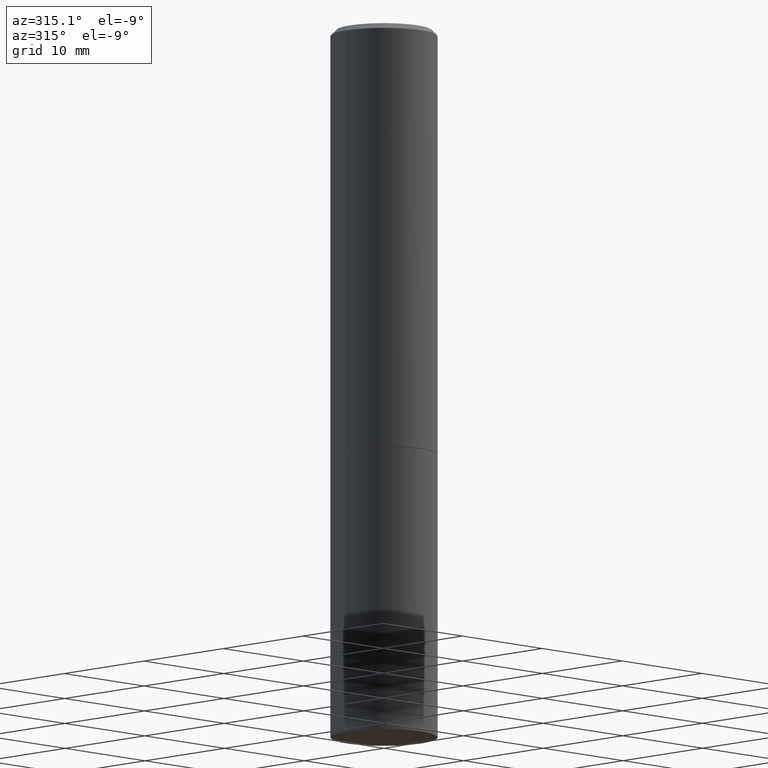
[diagram: clean part render]
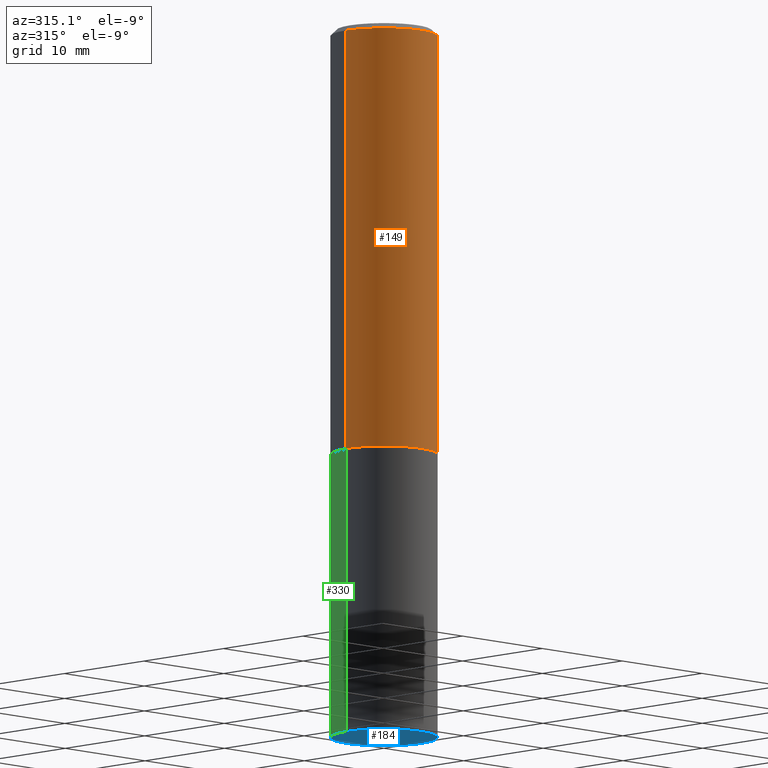
[diagram: same view with three faces highlighted in distinct colors, each labeled with its STEP entity id]
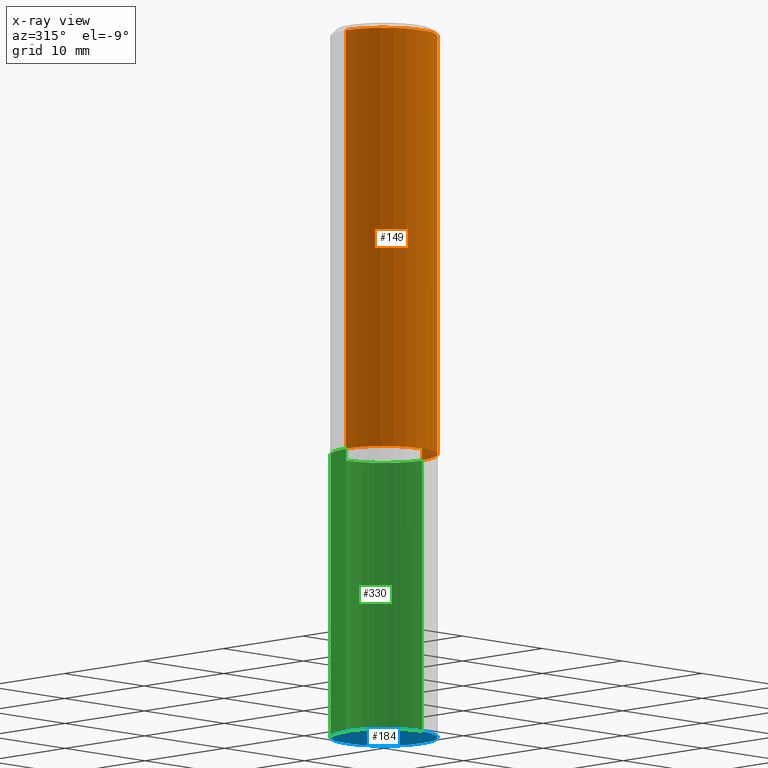
[diagram: x-ray of the same camera — body ghosted, the three highlighted faces saturated]
A machine part, auxiliary view with three faces highlighted in distinct colors.
The next image is the same camera in x-ray (body ghosted, the three faces saturated) — at least one of them is partly hidden behind the body in this view.
Their STEP definitions:

[orange] entity #149 — the highlighted cylindrical surface (partial cylindrical patch) has radius 4.7625 mm, axis along (-0, 0, 1).
#5 = AXIS2_PLACEMENT_3D ( 'NONE', #186, #328, #105 ) ;
#8 = DIRECTION ( 'NONE',  ( 1.000000000000000000, -6.982962677686265922E-15, 4.876176775795935793E-29 ) ) ;
#37 = EDGE_CURVE ( 'NONE', #284, #317, #40, .T. ) ;
#40 = LINE ( 'NONE', #243, #255 ) ;
#49 = EDGE_CURVE ( 'NONE', #284, #160, #67, .T. ) ;
#56 = ORIENTED_EDGE ( 'NONE', *, *, #126, .T. ) ;
#59 = CARTESIAN_POINT ( 'NONE',  ( 4.890937612370283668E-31, -6.982962677686305168E-17, -0.02000000000000004205 ) ) ;
#67 = CIRCLE ( 'NONE', #5, 0.1875000000000000278 ) ;
#77 = DIRECTION ( 'NONE',  ( -2.445468806185136597E-29, 3.491481338843145583E-15, 1.000000000000000000 ) ) ;
#90 = DIRECTION ( 'NONE',  ( 1.000000000000000000, -6.982962677686266711E-15, 0.000000000000000000 ) ) ;
#101 = LINE ( 'NONE', #267, #152 ) ;
#105 = DIRECTION ( 'NONE',  ( 1.000000000000000000, -6.982962677686266711E-15, 0.000000000000000000 ) ) ;
#107 = CIRCLE ( 'NONE', #265, 0.1874999999999998057 ) ;
#121 = ORIENTED_EDGE ( 'NONE', *, *, #260, .F. ) ;
#126 = EDGE_CURVE ( 'NONE', #160, #357, #101, .T. ) ;
#149 = ADVANCED_FACE ( 'NONE', ( #241 ), #244, .T. ) ;
#151 = DIRECTION ( 'NONE',  ( -2.445468806185136597E-29, 3.491481338843145583E-15, 1.000000000000000000 ) ) ;
#152 = VECTOR ( 'NONE', #164, 39.37007874015748143 ) ;
#160 = VERTEX_POINT ( 'NONE', #342 ) ;
#164 = DIRECTION ( 'NONE',  ( -2.445468806185136877E-29, 3.491481338843145188E-15, 1.000000000000000000 ) ) ;
#186 = CARTESIAN_POINT ( 'NONE',  ( 3.665757740471519853E-29, -5.233730526925875958E-15, -1.499000000000000110 ) ) ;
#224 = CARTESIAN_POINT ( 'NONE',  ( 0.000000000000000000, 0.000000000000000000, 0.000000000000000000 ) ) ;
#241 = FACE_OUTER_BOUND ( 'NONE', #296, .T. ) ;
#243 = CARTESIAN_POINT ( 'NONE',  ( -0.1874999999999999167, 1.332267629550187257E-15, -9.223003294227943787E-30 ) ) ;
#244 = CYLINDRICAL_SURFACE ( 'NONE', #312, 0.1874999999999999167 ) ;
#245 = DIRECTION ( 'NONE',  ( -2.445468806185136877E-29, 3.491481338843145188E-15, 1.000000000000000000 ) ) ;
#255 = VECTOR ( 'NONE', #245, 39.37007874015748143 ) ;
#259 = ORIENTED_EDGE ( 'NONE', *, *, #49, .T. ) ;
#260 = EDGE_CURVE ( 'NONE', #317, #357, #107, .T. ) ;
#264 = CARTESIAN_POINT ( 'NONE',  ( -0.1874999999999999722, -1.319512447301180399E-15, -1.499000000000000110 ) ) ;
#265 = AXIS2_PLACEMENT_3D ( 'NONE', #59, #151, #90 ) ;
#267 = CARTESIAN_POINT ( 'NONE',  ( 0.1874999999999999167, -1.309305502066174219E-15, 9.142831454617375408E-30 ) ) ;
#280 = ORIENTED_EDGE ( 'NONE', *, *, #37, .F. ) ;
#284 = VERTEX_POINT ( 'NONE', #264 ) ;
#296 = EDGE_LOOP ( 'NONE', ( #280, #259, #56, #121 ) ) ;
#305 = CARTESIAN_POINT ( 'NONE',  ( 0.1874999999999998057, -1.356173001359023888E-15, -0.02000000000000004205 ) ) ;
#312 = AXIS2_PLACEMENT_3D ( 'NONE', #224, #77, #8 ) ;
#317 = VERTEX_POINT ( 'NONE', #356 ) ;
#328 = DIRECTION ( 'NONE',  ( -2.445468806185136597E-29, 3.491481338843145583E-15, 1.000000000000000000 ) ) ;
#342 = CARTESIAN_POINT ( 'NONE',  ( 0.1875000000000000278, -6.543036028992050967E-15, -1.499000000000000110 ) ) ;
#356 = CARTESIAN_POINT ( 'NONE',  ( -0.1874999999999998057, 1.239475875289310527E-15, -0.02000000000000004205 ) ) ;
#357 = VERTEX_POINT ( 'NONE', #305 ) ;

[blue] entity #184 — the highlighted planar face has unit normal (0, -0, -1).
#2 = VERTEX_POINT ( 'NONE', #236 ) ;
#13 = DIRECTION ( 'NONE',  ( 1.000000000000000000, -6.982962677686266711E-15, 0.000000000000000000 ) ) ;
#16 = CARTESIAN_POINT ( 'NONE',  ( 1.309305502066236145E-15, 0.1874999999999912847, -2.500000000000000444 ) ) ;
#45 = AXIS2_PLACEMENT_3D ( 'NONE', #76, #161, #297 ) ;
#58 = CARTESIAN_POINT ( 'NONE',  ( 0.1875000000000000278, -1.003800884917403995E-14, -2.500000000000000000 ) ) ;
#69 = PLANE ( 'NONE',  #156 ) ;
#76 = CARTESIAN_POINT ( 'NONE',  ( 6.113672015462842613E-29, -8.728703347107864943E-15, -2.500000000000000000 ) ) ;
#85 = DIRECTION ( 'NONE',  ( -1.000000000000000000, 6.982962677686265922E-15, -4.876176775795935793E-29 ) ) ;
#89 = CIRCLE ( 'NONE', #45, 0.1875000000000000278 ) ;
#123 = EDGE_CURVE ( 'NONE', #2, #363, #234, .T. ) ;
#156 = AXIS2_PLACEMENT_3D ( 'NONE', #16, #226, #85 ) ;
#161 = DIRECTION ( 'NONE',  ( -2.445468806185136597E-29, 3.491481338843145583E-15, 1.000000000000000000 ) ) ;
#162 = FACE_OUTER_BOUND ( 'NONE', #300, .T. ) ;
#184 = ADVANCED_FACE ( 'NONE', ( #162 ), #69, .T. ) ;
#194 = CARTESIAN_POINT ( 'NONE',  ( 6.113672015462842613E-29, -8.728703347107864943E-15, -2.500000000000000000 ) ) ;
#222 = ORIENTED_EDGE ( 'NONE', *, *, #123, .F. ) ;
#226 = DIRECTION ( 'NONE',  ( 2.438088387897960049E-29, -3.491481338843145188E-15, -1.000000000000000000 ) ) ;
#234 = CIRCLE ( 'NONE', #307, 0.1875000000000000278 ) ;
#236 = CARTESIAN_POINT ( 'NONE',  ( -0.1875000000000000278, -5.650695048136103317E-15, -2.500000000000000000 ) ) ;
#250 = EDGE_CURVE ( 'NONE', #363, #2, #89, .T. ) ;
#268 = DIRECTION ( 'NONE',  ( -2.445468806185136597E-29, 3.491481338843145583E-15, 1.000000000000000000 ) ) ;
#297 = DIRECTION ( 'NONE',  ( 1.000000000000000000, -6.982962677686266711E-15, 0.000000000000000000 ) ) ;
#300 = EDGE_LOOP ( 'NONE', ( #346, #222 ) ) ;
#307 = AXIS2_PLACEMENT_3D ( 'NONE', #194, #268, #13 ) ;
#346 = ORIENTED_EDGE ( 'NONE', *, *, #250, .F. ) ;
#363 = VERTEX_POINT ( 'NONE', #58 ) ;

[green] entity #330 — the highlighted cylindrical surface (partial cylindrical patch) has radius 4.7625 mm, axis along (-0, 0, 1).
#2 = VERTEX_POINT ( 'NONE', #236 ) ;
#27 = CARTESIAN_POINT ( 'NONE',  ( 0.1875000000000000278, -6.546527510330893974E-15, -1.500000000000000222 ) ) ;
#44 = CARTESIAN_POINT ( 'NONE',  ( 0.1875000000000000278, -1.309305502066175008E-15, 9.142831454617381013E-30 ) ) ;
#45 = AXIS2_PLACEMENT_3D ( 'NONE', #76, #161, #297 ) ;
#58 = CARTESIAN_POINT ( 'NONE',  ( 0.1875000000000000278, -1.003800884917403995E-14, -2.500000000000000000 ) ) ;
#60 = ORIENTED_EDGE ( 'NONE', *, *, #87, .F. ) ;
#64 = LINE ( 'NONE', #213, #291 ) ;
#72 = EDGE_CURVE ( 'NONE', #354, #81, #104, .T. ) ;
#74 = AXIS2_PLACEMENT_3D ( 'NONE', #240, #289, #266 ) ;
#76 = CARTESIAN_POINT ( 'NONE',  ( 6.113672015462842613E-29, -8.728703347107864943E-15, -2.500000000000000000 ) ) ;
#79 = DIRECTION ( 'NONE',  ( -2.445468806185136597E-29, 3.491481338843145583E-15, 1.000000000000000000 ) ) ;
#81 = VERTEX_POINT ( 'NONE', #294 ) ;
#86 = EDGE_LOOP ( 'NONE', ( #237, #102, #336, #60 ) ) ;
#87 = EDGE_CURVE ( 'NONE', #363, #354, #343, .T. ) ;
#89 = CIRCLE ( 'NONE', #45, 0.1875000000000000278 ) ;
#100 = DIRECTION ( 'NONE',  ( -2.445468806185136877E-29, 3.491481338843145188E-15, 1.000000000000000000 ) ) ;
#102 = ORIENTED_EDGE ( 'NONE', *, *, #223, .T. ) ;
#104 = CIRCLE ( 'NONE', #74, 0.1875000000000000278 ) ;
#112 = CYLINDRICAL_SURFACE ( 'NONE', #351, 0.1875000000000000278 ) ;
#116 = CARTESIAN_POINT ( 'NONE',  ( 0.000000000000000000, 0.000000000000000000, 0.000000000000000000 ) ) ;
#161 = DIRECTION ( 'NONE',  ( -2.445468806185136597E-29, 3.491481338843145583E-15, 1.000000000000000000 ) ) ;
#176 = DIRECTION ( 'NONE',  ( -2.445468806185136877E-29, 3.491481338843145188E-15, 1.000000000000000000 ) ) ;
#203 = DIRECTION ( 'NONE',  ( 1.000000000000000000, -6.982962677686265922E-15, 4.876176775795935793E-29 ) ) ;
#213 = CARTESIAN_POINT ( 'NONE',  ( -0.1875000000000000278, 1.332267629550188046E-15, -9.223003294227947991E-30 ) ) ;
#223 = EDGE_CURVE ( 'NONE', #2, #81, #64, .T. ) ;
#236 = CARTESIAN_POINT ( 'NONE',  ( -0.1875000000000000278, -5.650695048136103317E-15, -2.500000000000000000 ) ) ;
#237 = ORIENTED_EDGE ( 'NONE', *, *, #250, .T. ) ;
#240 = CARTESIAN_POINT ( 'NONE',  ( 3.668203209277704895E-29, -5.237222008264718177E-15, -1.500000000000000222 ) ) ;
#250 = EDGE_CURVE ( 'NONE', #363, #2, #89, .T. ) ;
#266 = DIRECTION ( 'NONE',  ( 1.000000000000000000, -6.982962677686266711E-15, 0.000000000000000000 ) ) ;
#289 = DIRECTION ( 'NONE',  ( -2.445468806185136597E-29, 3.491481338843145583E-15, 1.000000000000000000 ) ) ;
#291 = VECTOR ( 'NONE', #176, 39.37007874015748143 ) ;
#294 = CARTESIAN_POINT ( 'NONE',  ( -0.1875000000000000278, -5.650695048136103317E-15, -1.500000000000000222 ) ) ;
#297 = DIRECTION ( 'NONE',  ( 1.000000000000000000, -6.982962677686266711E-15, 0.000000000000000000 ) ) ;
#304 = FACE_OUTER_BOUND ( 'NONE', #86, .T. ) ;
#314 = VECTOR ( 'NONE', #100, 39.37007874015748143 ) ;
#330 = ADVANCED_FACE ( 'NONE', ( #304 ), #112, .T. ) ;
#336 = ORIENTED_EDGE ( 'NONE', *, *, #72, .F. ) ;
#343 = LINE ( 'NONE', #44, #314 ) ;
#351 = AXIS2_PLACEMENT_3D ( 'NONE', #116, #79, #203 ) ;
#354 = VERTEX_POINT ( 'NONE', #27 ) ;
#363 = VERTEX_POINT ( 'NONE', #58 ) ;